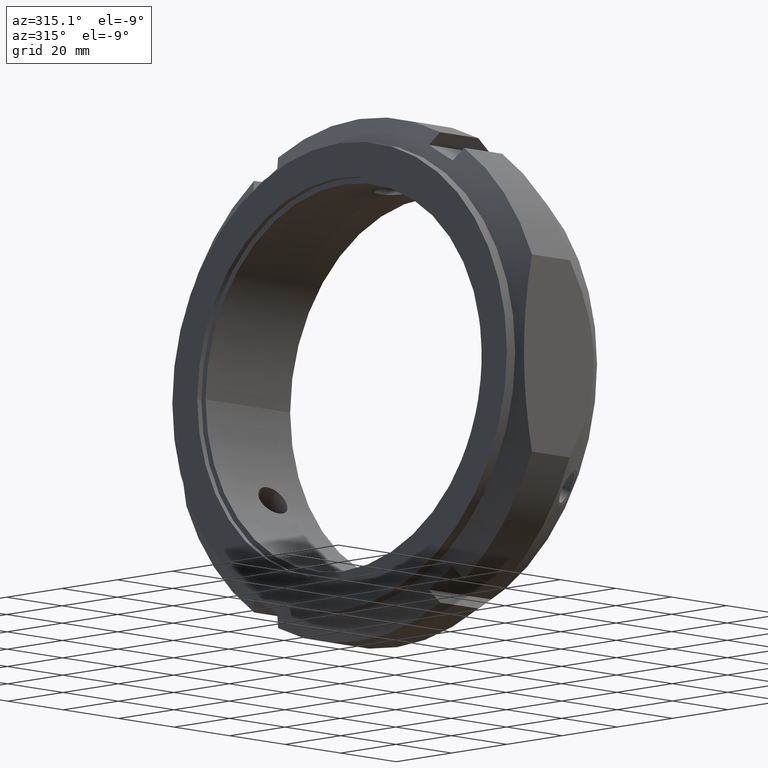
[diagram: clean part render]
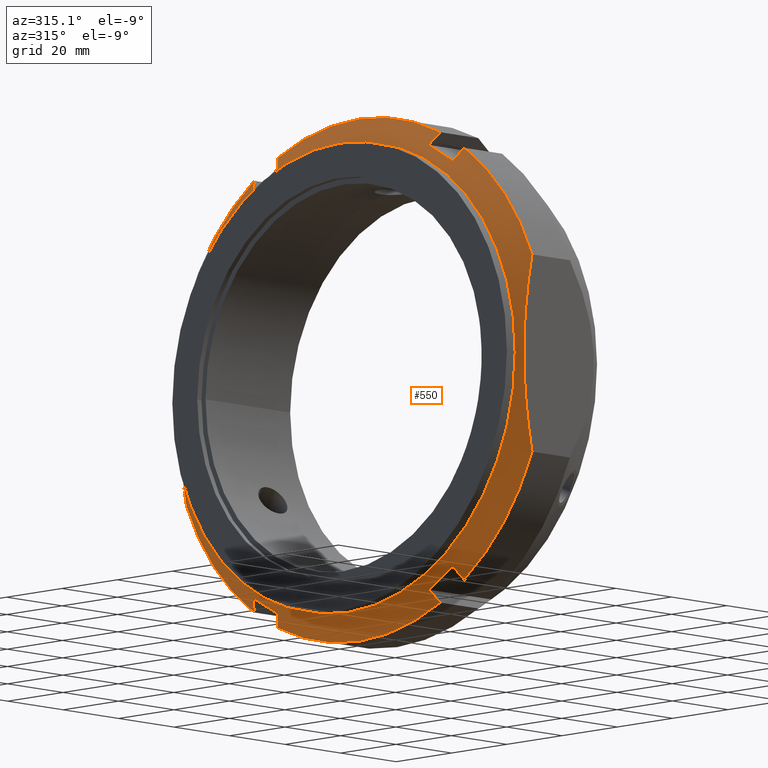
[diagram: same view with one face highlighted and labeled with its STEP entity id]
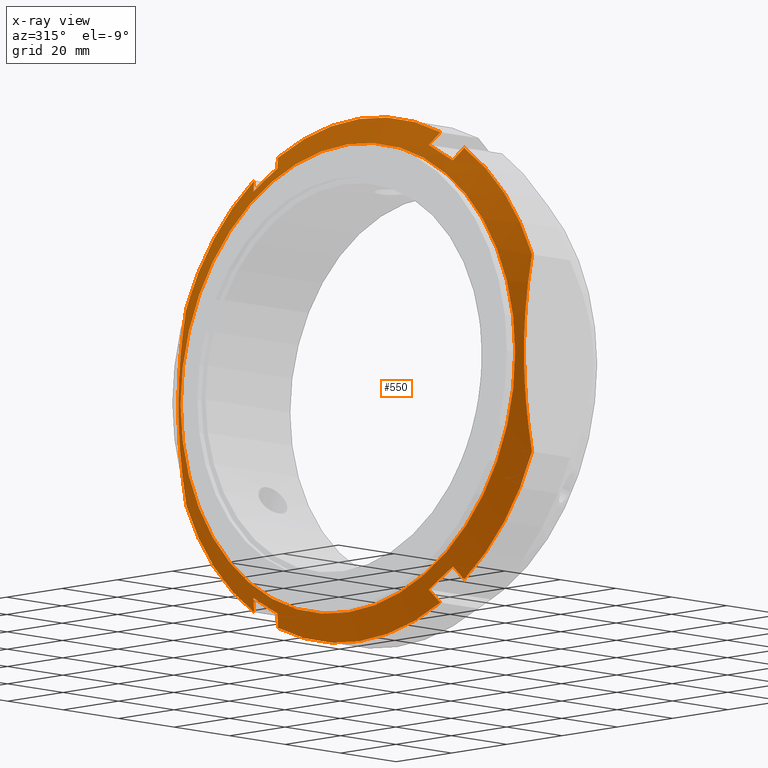
[diagram: x-ray of the same camera — body ghosted, the highlighted face saturated]
A machine part, auxiliary view. The second image highlights one B-rep face of the part: STEP entity #550.
The next image is the same camera in x-ray: the body ghosted, the highlighted face saturated — about 0% of this face is hidden behind the body in this view.
In plain terms, the highlighted conical surface has half-angle 60 deg.
Its self-contained STEP definition (entity closure, byte-faithful):
#73=CARTESIAN_POINT('',(4.845526818977938,36.080127018922134,-52.492613140311882));
#74=VERTEX_POINT('',#73);
#75=CARTESIAN_POINT('',(4.845526818977952,27.419872981077745,-57.492613140311882));
#76=VERTEX_POINT('',#75);
#77=CARTESIAN_POINT('',(4.845526818977938,36.080127018922134,-52.492613140311882));
#78=CARTESIAN_POINT('',(4.618924945148646,31.749999999942499,-54.99261314034505));
#79=CARTESIAN_POINT('',(4.845526818977952,27.419872981077745,-57.492613140311882));
#87=(BOUNDED_CURVE()B_SPLINE_CURVE(2,(#77,#78,#79),.UNSPECIFIED.,.F.,.U.)B_SPLINE_CURVE_WITH_KNOTS((3,3),(1.783159452791373,2.818289594338622),.UNSPECIFIED.)CURVE()GEOMETRIC_REPRESENTATION_ITEM()RATIONAL_B_SPLINE_CURVE((1.029902178132339,1.033089947851908,1.029902178132339))REPRESENTATION_ITEM(''));
#88=EDGE_CURVE('',#74,#76,#87,.T.);
#127=CARTESIAN_POINT('',(7.041451884327344,29.327153025668402,-60.796119081805116));
#128=VERTEX_POINT('',#127);
#129=CARTESIAN_POINT('',(4.845526818977952,27.419872981077745,-57.492613140311882));
#130=CARTESIAN_POINT('',(5.911472700643641,28.34586649965226,-59.096480961962413));
#131=CARTESIAN_POINT('',(7.041451884327355,29.327153025668409,-60.796119081805131));
#139=(BOUNDED_CURVE()B_SPLINE_CURVE(2,(#129,#130,#131),.UNSPECIFIED.,.F.,.U.)B_SPLINE_CURVE_WITH_KNOTS((3,3),(0.694825758358171,1.114616555881371),.UNSPECIFIED.)CURVE()GEOMETRIC_REPRESENTATION_ITEM()RATIONAL_B_SPLINE_CURVE((1.001400280550745,1.001123141928724,1.0))REPRESENTATION_ITEM(''));
#140=EDGE_CURVE('',#76,#128,#139,.T.);
#172=CARTESIAN_POINT('',(7.041451884327344,37.987407063512784,-55.796119081805131));
#173=VERTEX_POINT('',#172);
#174=CARTESIAN_POINT('',(7.041451884327353,37.987407063512791,-55.796119081805138));
#175=CARTESIAN_POINT('',(5.911472701231597,37.006120538007671,-54.096480962847536));
#176=CARTESIAN_POINT('',(4.845526818977938,36.080127018922134,-52.492613140311882));
#184=(BOUNDED_CURVE()B_SPLINE_CURVE(2,(#174,#175,#176),.UNSPECIFIED.,.F.,.U.)B_SPLINE_CURVE_WITH_KNOTS((3,3),(0.0,0.419790797889892),.UNSPECIFIED.)CURVE()GEOMETRIC_REPRESENTATION_ITEM()RATIONAL_B_SPLINE_CURVE((1.0,1.00112314185437,1.001400280457304))REPRESENTATION_ITEM(''));
#185=EDGE_CURVE('',#173,#74,#184,.T.);
#217=CARTESIAN_POINT('',(4.845526818977934,-36.08012701892217,-52.492613140311846));
#218=VERTEX_POINT('',#217);
#219=CARTESIAN_POINT('',(7.041451884327352,-37.987407063512833,-55.796119081805109));
#220=VERTEX_POINT('',#219);
#221=CARTESIAN_POINT('',(4.845526818977934,-36.08012701892217,-52.492613140311846));
#222=CARTESIAN_POINT('',(5.911472701128063,-37.006120537917717,-54.096480962691643));
#223=CARTESIAN_POINT('',(7.041451884327355,-37.98740706351284,-55.796119081805109));
#231=(BOUNDED_CURVE()B_SPLINE_CURVE(2,(#221,#222,#223),.UNSPECIFIED.,.F.,.U.)B_SPLINE_CURVE_WITH_KNOTS((3,3),(0.694825758060558,1.114616555881371),.UNSPECIFIED.)CURVE()GEOMETRIC_REPRESENTATION_ITEM()RATIONAL_B_SPLINE_CURVE((1.001400280466441,1.001123141861586,1.0))REPRESENTATION_ITEM(''));
#232=EDGE_CURVE('',#218,#220,#231,.T.);
#271=CARTESIAN_POINT('',(7.041451884327341,-29.32715302566843,-60.796119081805095));
#272=VERTEX_POINT('',#271);
#273=CARTESIAN_POINT('',(4.845526818977936,-27.419872981077773,-57.492613140311846));
#274=VERTEX_POINT('',#273);
#275=CARTESIAN_POINT('',(7.041451884327355,-29.327153025668444,-60.796119081805116));
#276=CARTESIAN_POINT('',(5.91147270110489,-28.345866500053187,-59.096480962656756));
#277=CARTESIAN_POINT('',(4.845526818977936,-27.419872981077773,-57.492613140311846));
#285=(BOUNDED_CURVE()B_SPLINE_CURVE(2,(#275,#276,#277),.UNSPECIFIED.,.F.,.U.)B_SPLINE_CURVE_WITH_KNOTS((3,3),(0.0,0.41979079780987),.UNSPECIFIED.)CURVE()GEOMETRIC_REPRESENTATION_ITEM()RATIONAL_B_SPLINE_CURVE((1.0,1.00112314186909,1.001400280475818))REPRESENTATION_ITEM(''));
#286=EDGE_CURVE('',#272,#274,#285,.T.);
#325=CARTESIAN_POINT('',(4.845526818977936,-27.419872981077773,-57.492613140311846));
#326=CARTESIAN_POINT('',(4.618924945148634,-31.750000000057412,-54.992613140278692));
#327=CARTESIAN_POINT('',(4.845526818977934,-36.08012701892217,-52.492613140311846));
#335=(BOUNDED_CURVE()B_SPLINE_CURVE(2,(#325,#326,#327),.UNSPECIFIED.,.F.,.U.)B_SPLINE_CURVE_WITH_KNOTS((3,3),(1.783159452791368,2.818289594338618),.UNSPECIFIED.)CURVE()GEOMETRIC_REPRESENTATION_ITEM()RATIONAL_B_SPLINE_CURVE((1.02990217813234,1.033089947851909,1.02990217813234))REPRESENTATION_ITEM(''));
#336=EDGE_CURVE('',#274,#218,#335,.T.);
#356=CARTESIAN_POINT('',(5.020725942163665,0.0,0.0));
#357=DIRECTION('',(1.0,0.0,0.0));
#358=DIRECTION('',(0.0,1.0,0.0));
#359=AXIS2_PLACEMENT_3D('',#356,#357,#358);
#360=CONICAL_SURFACE('',#359,64.0,60.000000000000071);
#361=CARTESIAN_POINT('',(2.999999999999983,60.500000000000007,0.0));
#362=VERTEX_POINT('',#361);
#363=CARTESIAN_POINT('',(2.999999999999983,0.0,0.0));
#364=DIRECTION('',(1.0,0.0,0.0));
#365=DIRECTION('',(0.0,1.0,0.0));
#366=AXIS2_PLACEMENT_3D('',#363,#364,#365);
#367=CIRCLE('',#366,60.500000000000007);
#368=EDGE_CURVE('',#362,#362,#367,.T.);
#369=ORIENTED_EDGE('',*,*,#368,.T.);
#370=EDGE_LOOP('',(#369));
#371=FACE_OUTER_BOUND('',#370,.T.);
#372=ORIENTED_EDGE('',*,*,#185,.T.);
#373=ORIENTED_EDGE('',*,*,#88,.T.);
#374=ORIENTED_EDGE('',*,*,#140,.T.);
#375=CARTESIAN_POINT('',(7.041451884327348,0.0,0.0));
#376=DIRECTION('',(1.0,0.0,0.0));
#377=DIRECTION('',(0.0,1.0,0.0));
#378=AXIS2_PLACEMENT_3D('',#375,#376,#377);
#379=CIRCLE('',#378,67.5);
#380=EDGE_CURVE('',#272,#128,#379,.T.);
#381=ORIENTED_EDGE('',*,*,#380,.F.);
#382=ORIENTED_EDGE('',*,*,#286,.T.);
#383=ORIENTED_EDGE('',*,*,#336,.T.);
#384=ORIENTED_EDGE('',*,*,#232,.T.);
#385=CARTESIAN_POINT('',(7.041451884327348,-62.500000000000028,-25.495097567963867));
#386=VERTEX_POINT('',#385);
#387=CARTESIAN_POINT('',(7.041451884327348,0.0,0.0));
#388=DIRECTION('',(1.0,0.0,0.0));
#389=DIRECTION('',(0.0,1.0,0.0));
#390=AXIS2_PLACEMENT_3D('',#387,#388,#389);
#391=CIRCLE('',#390,67.5);
#392=EDGE_CURVE('',#386,#220,#391,.T.);
#393=ORIENTED_EDGE('',*,*,#392,.F.);
#394=CARTESIAN_POINT('',(7.041451884327348,-62.500000000000043,25.495097567963818));
#395=VERTEX_POINT('',#394);
#396=CARTESIAN_POINT('',(7.041451884327355,-62.500000000000028,-25.495097567963903));
#397=CARTESIAN_POINT('',(1.481782625464329,-62.500000000000028,-2.442491E-014));
#398=CARTESIAN_POINT('',(7.041451884327355,-62.500000000000043,25.495097567963857));
#406=(BOUNDED_CURVE()B_SPLINE_CURVE(2,(#396,#397,#398),.UNSPECIFIED.,.F.,.U.)B_SPLINE_CURVE_WITH_KNOTS((3,3),(0.0,5.131601439446874),.UNSPECIFIED.)CURVE()GEOMETRIC_REPRESENTATION_ITEM()RATIONAL_B_SPLINE_CURVE((1.0,1.079999999999997,1.0))REPRESENTATION_ITEM(''));
#407=EDGE_CURVE('',#386,#395,#406,.T.);
#408=ORIENTED_EDGE('',*,*,#407,.T.);
#409=CARTESIAN_POINT('',(7.041451884327348,-37.987407063512833,55.796119081805109));
#410=VERTEX_POINT('',#409);
#411=CARTESIAN_POINT('',(7.041451884327348,0.0,0.0));
#412=DIRECTION('',(1.0,0.0,0.0));
#413=DIRECTION('',(0.0,1.0,0.0));
#414=AXIS2_PLACEMENT_3D('',#411,#412,#413);
#415=CIRCLE('',#414,67.5);
#416=EDGE_CURVE('',#410,#395,#415,.T.);
#417=ORIENTED_EDGE('',*,*,#416,.F.);
#418=CARTESIAN_POINT('',(4.845526818977934,-36.08012701892217,52.492613140311846));
#419=VERTEX_POINT('',#418);
#420=CARTESIAN_POINT('',(7.041451884327355,-37.98740706351284,55.796119081805109));
#421=CARTESIAN_POINT('',(5.911472701128063,-37.006120537917717,54.096480962691643));
#422=CARTESIAN_POINT('',(4.845526818977934,-36.08012701892217,52.492613140311846));
#430=(BOUNDED_CURVE()B_SPLINE_CURVE(2,(#420,#421,#422),.UNSPECIFIED.,.F.,.U.)B_SPLINE_CURVE_WITH_KNOTS((3,3),(0.0,0.419790797820812),.UNSPECIFIED.)CURVE()GEOMETRIC_REPRESENTATION_ITEM()RATIONAL_B_SPLINE_CURVE((1.0,1.001123141861586,1.001400280466441))REPRESENTATION_ITEM(''));
#431=EDGE_CURVE('',#410,#419,#430,.T.);
#432=ORIENTED_EDGE('',*,*,#431,.T.);
#433=CARTESIAN_POINT('',(4.845526818977936,-27.419872981077773,57.492613140311846));
#434=VERTEX_POINT('',#433);
#435=CARTESIAN_POINT('',(4.845526818977934,-36.08012701892217,52.492613140311846));
#436=CARTESIAN_POINT('',(4.618924945148633,-31.749999999942531,54.992613140345014));
#437=CARTESIAN_POINT('',(4.845526818977936,-27.419872981077773,57.492613140311846));
#445=(BOUNDED_CURVE()B_SPLINE_CURVE(2,(#435,#436,#437),.UNSPECIFIED.,.F.,.U.)B_SPLINE_CURVE_WITH_KNOTS((3,3),(1.783159452791373,2.818289594338623),.UNSPECIFIED.)CURVE()GEOMETRIC_REPRESENTATION_ITEM()RATIONAL_B_SPLINE_CURVE((1.02990217813234,1.033089947851909,1.02990217813234))REPRESENTATION_ITEM(''));
#446=EDGE_CURVE('',#419,#434,#445,.T.);
#447=ORIENTED_EDGE('',*,*,#446,.T.);
#448=CARTESIAN_POINT('',(7.041451884327348,-29.327153025668437,60.796119081805102));
#449=VERTEX_POINT('',#448);
#450=CARTESIAN_POINT('',(4.845526818977936,-27.419872981077773,57.492613140311846));
#451=CARTESIAN_POINT('',(5.911472701104891,-28.345866500053187,59.096480962656763));
#452=CARTESIAN_POINT('',(7.041451884327355,-29.327153025668444,60.796119081805116));
#460=(BOUNDED_CURVE()B_SPLINE_CURVE(2,(#450,#451,#452),.UNSPECIFIED.,.F.,.U.)B_SPLINE_CURVE_WITH_KNOTS((3,3),(0.694825758071502,1.114616555881371),.UNSPECIFIED.)CURVE()GEOMETRIC_REPRESENTATION_ITEM()RATIONAL_B_SPLINE_CURVE((1.001400280475818,1.00112314186909,1.0))REPRESENTATION_ITEM(''));
#461=EDGE_CURVE('',#434,#449,#460,.T.);
#462=ORIENTED_EDGE('',*,*,#461,.T.);
#463=CARTESIAN_POINT('',(7.041451884327348,29.327153025668402,60.796119081805116));
#464=VERTEX_POINT('',#463);
#465=CARTESIAN_POINT('',(7.041451884327348,0.0,0.0));
#466=DIRECTION('',(1.0,0.0,0.0));
#467=DIRECTION('',(0.0,1.0,0.0));
#468=AXIS2_PLACEMENT_3D('',#465,#466,#467);
#469=CIRCLE('',#468,67.5);
#470=EDGE_CURVE('',#464,#449,#469,.T.);
#471=ORIENTED_EDGE('',*,*,#470,.F.);
#472=CARTESIAN_POINT('',(4.845526818977952,27.419872981077745,57.492613140311882));
#473=VERTEX_POINT('',#472);
#474=CARTESIAN_POINT('',(7.041451884327355,29.327153025668409,60.796119081805131));
#475=CARTESIAN_POINT('',(5.911472700643641,28.34586649965226,59.096480961962413));
#476=CARTESIAN_POINT('',(4.845526818977952,27.419872981077745,57.492613140311882));
#484=(BOUNDED_CURVE()B_SPLINE_CURVE(2,(#474,#475,#476),.UNSPECIFIED.,.F.,.U.)B_SPLINE_CURVE_WITH_KNOTS((3,3),(0.0,0.419790797523199),.UNSPECIFIED.)CURVE()GEOMETRIC_REPRESENTATION_ITEM()RATIONAL_B_SPLINE_CURVE((1.0,1.001123141928724,1.001400280550745))REPRESENTATION_ITEM(''));
#485=EDGE_CURVE('',#464,#473,#484,.T.);
#486=ORIENTED_EDGE('',*,*,#485,.T.);
#487=CARTESIAN_POINT('',(4.845526818977938,36.080127018922134,52.492613140311882));
#488=VERTEX_POINT('',#487);
#489=CARTESIAN_POINT('',(4.845526818977952,27.419872981077745,57.492613140311882));
#490=CARTESIAN_POINT('',(4.618924945148639,31.75000000005738,54.992613140278706));
#491=CARTESIAN_POINT('',(4.845526818977938,36.080127018922134,52.492613140311882));
#499=(BOUNDED_CURVE()B_SPLINE_CURVE(2,(#489,#490,#491),.UNSPECIFIED.,.F.,.U.)B_SPLINE_CURVE_WITH_KNOTS((3,3),(1.78315945279136,2.818289594338609),.UNSPECIFIED.)CURVE()GEOMETRIC_REPRESENTATION_ITEM()RATIONAL_B_SPLINE_CURVE((1.029902178132339,1.033089947851908,1.029902178132339))REPRESENTATION_ITEM(''));
#500=EDGE_CURVE('',#473,#488,#499,.T.);
#501=ORIENTED_EDGE('',*,*,#500,.T.);
#502=CARTESIAN_POINT('',(7.041451884327348,37.987407063512784,55.796119081805131));
#503=VERTEX_POINT('',#502);
#504=CARTESIAN_POINT('',(4.845526818977938,36.080127018922134,52.492613140311882));
#505=CARTESIAN_POINT('',(5.911472701231598,37.006120538007671,54.096480962847536));
#506=CARTESIAN_POINT('',(7.041451884327353,37.987407063512791,55.796119081805138));
#514=(BOUNDED_CURVE()B_SPLINE_CURVE(2,(#504,#505,#506),.UNSPECIFIED.,.F.,.U.)B_SPLINE_CURVE_WITH_KNOTS((3,3),(0.694825757991479,1.114616555881371),.UNSPECIFIED.)CURVE()GEOMETRIC_REPRESENTATION_ITEM()RATIONAL_B_SPLINE_CURVE((1.001400280457304,1.001123141854369,1.0))REPRESENTATION_ITEM(''));
#515=EDGE_CURVE('',#488,#503,#514,.T.);
#516=ORIENTED_EDGE('',*,*,#515,.T.);
#517=CARTESIAN_POINT('',(7.041451884327348,62.500000000000043,25.495097567963818));
#518=VERTEX_POINT('',#517);
#519=CARTESIAN_POINT('',(7.041451884327348,0.0,0.0));
#520=DIRECTION('',(1.0,0.0,0.0));
#521=DIRECTION('',(0.0,1.0,0.0));
#522=AXIS2_PLACEMENT_3D('',#519,#520,#521);
#523=CIRCLE('',#522,67.5);
#524=EDGE_CURVE('',#518,#503,#523,.T.);
#525=ORIENTED_EDGE('',*,*,#524,.F.);
#526=CARTESIAN_POINT('',(7.041451884327348,62.500000000000028,-25.495097567963867));
#527=VERTEX_POINT('',#526);
#528=CARTESIAN_POINT('',(7.041451884327349,62.500000000000043,25.495097567963839));
#529=CARTESIAN_POINT('',(1.481782625464329,62.500000000000028,-2.684944E-014));
#530=CARTESIAN_POINT('',(7.041451884327348,62.500000000000028,-25.495097567963889));
#538=(BOUNDED_CURVE()B_SPLINE_CURVE(2,(#528,#529,#530),.UNSPECIFIED.,.F.,.U.)B_SPLINE_CURVE_WITH_KNOTS((3,3),(0.0,5.131601439446872),.UNSPECIFIED.)CURVE()GEOMETRIC_REPRESENTATION_ITEM()RATIONAL_B_SPLINE_CURVE((1.0,1.079999999999996,1.0))REPRESENTATION_ITEM(''));
#539=EDGE_CURVE('',#518,#527,#538,.T.);
#540=ORIENTED_EDGE('',*,*,#539,.T.);
#541=CARTESIAN_POINT('',(7.041451884327348,0.0,0.0));
#542=DIRECTION('',(1.0,0.0,0.0));
#543=DIRECTION('',(0.0,1.0,0.0));
#544=AXIS2_PLACEMENT_3D('',#541,#542,#543);
#545=CIRCLE('',#544,67.5);
#546=EDGE_CURVE('',#173,#527,#545,.T.);
#547=ORIENTED_EDGE('',*,*,#546,.F.);
#548=EDGE_LOOP('',(#372,#373,#374,#381,#382,#383,#384,#393,#408,#417,#432,#447,#462,#471,#486,#501,#516,#525,#540,#547));
#549=FACE_BOUND('',#548,.T.);
#550=ADVANCED_FACE('',(#371,#549),#360,.T.);